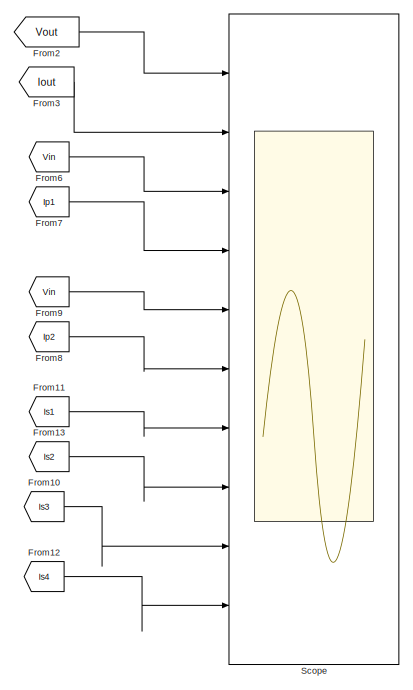
[diagram: root canvas - part 1/4, middle right region]
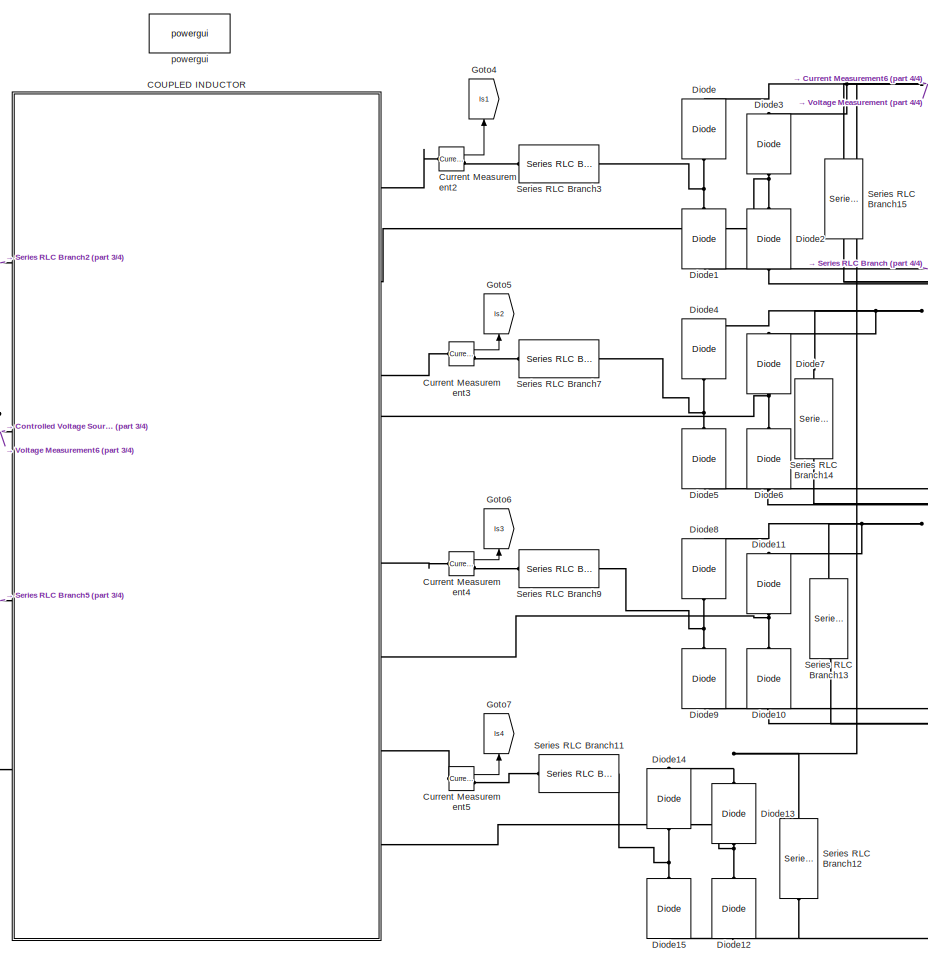
[diagram: root canvas - part 2/4, center side, full height]
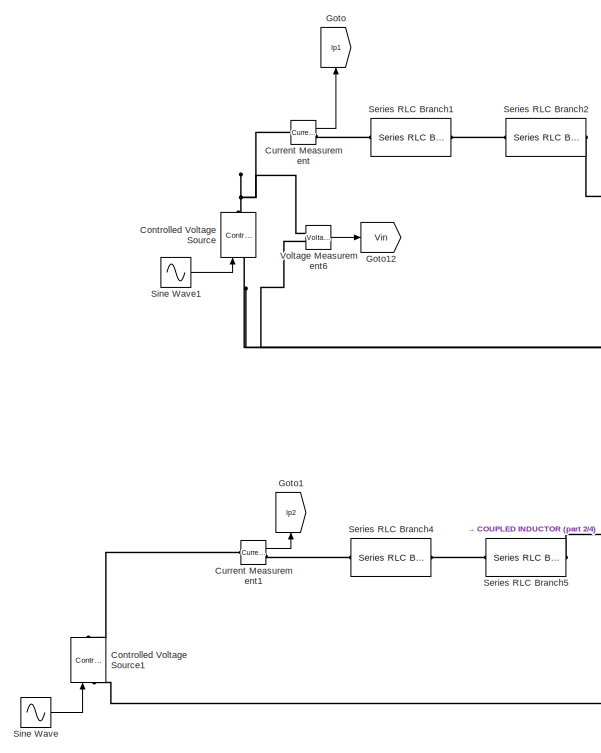
[diagram: root canvas - part 3/4, middle left region]
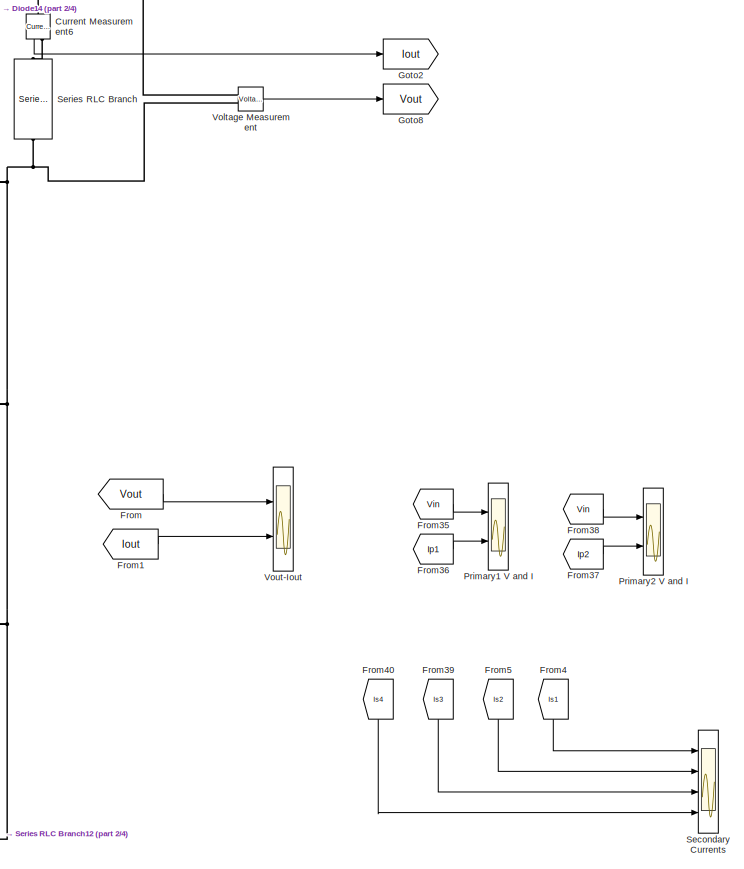
[diagram: root canvas - part 4/4, right side, full height]
MODEL slx_23c119fd1f82
KIND model
CONFIG AbsTol = auto
CONFIG EnableMultiTasking = off
CONFIG FixedStep = auto
CONFIG MaxStep = 1e-5
CONFIG MinStep = auto
CONFIG RelTol = 1e-3
CONFIG SampleTimeConstraint = Unconstrained
CONFIG Solver = VariableStepAuto
CONFIG SolverName = VariableStepAuto
CONFIG StartTime = 0.0
CONFIG StopTime = 0.01
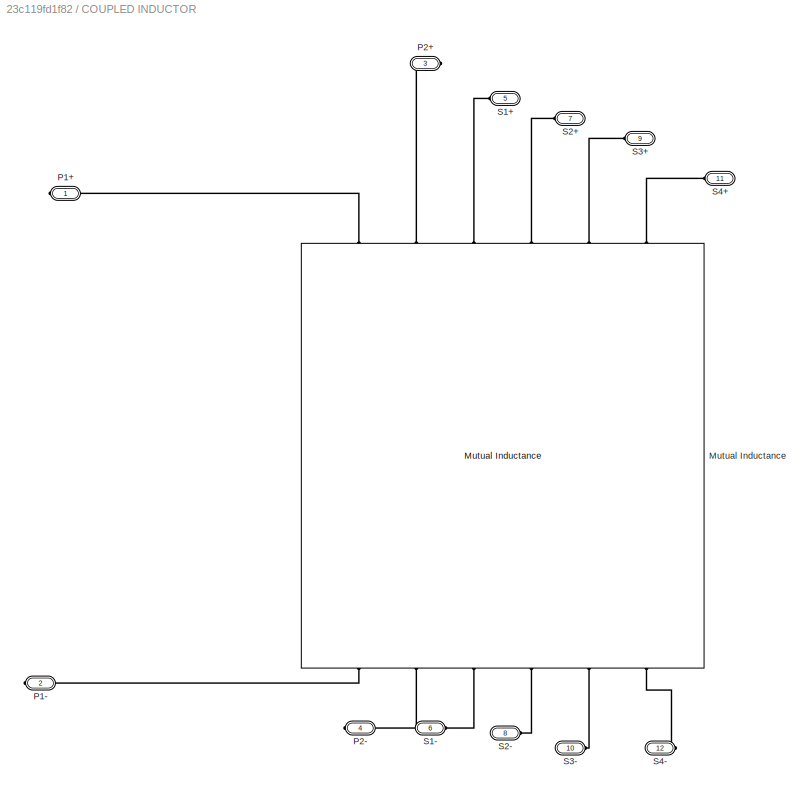
BLOCK [SubSystem] COUPLED INDUCTOR
  Ports = [0, 0, 0, 0, 0, 8, 4]
  RequestExecContextInheritance = off
BLOCK [Reference] COUPLED INDUCTOR/Mutual Inductance  REF=powerlib/Elements/Mutual Inductance
  AttributesFormatString = \n
  Ports = [0, 0, 0, 0, 0, 6, 6]
  SourceBlock = powerlib/Elements/Mutual Inductance
  SourceProductBaseCode = PS
  SourceProductName = Simscape Power Systems
  SourceType = Mutual Inductance
BLOCK [PMIOPort] COUPLED INDUCTOR/P1+
  Side = Right
BLOCK [PMIOPort] COUPLED INDUCTOR/P1-
  Port = 2
  Side = Right
BLOCK [PMIOPort] COUPLED INDUCTOR/P2+
  Port = 3
  Side = Right
BLOCK [PMIOPort] COUPLED INDUCTOR/P2-
  Port = 4
  Side = Right
BLOCK [PMIOPort] COUPLED INDUCTOR/S1+
  Port = 5
  Side = Left
BLOCK [PMIOPort] COUPLED INDUCTOR/S1-
  Port = 6
  Side = Left
BLOCK [PMIOPort] COUPLED INDUCTOR/S2+
  Port = 7
  Side = Left
BLOCK [PMIOPort] COUPLED INDUCTOR/S2-
  Port = 8
  Side = Left
BLOCK [PMIOPort] COUPLED INDUCTOR/S3+
  Port = 9
  Side = Left
BLOCK [PMIOPort] COUPLED INDUCTOR/S3-
  Port = 10
  Side = Left
BLOCK [PMIOPort] COUPLED INDUCTOR/S4+
  Port = 11
  Side = Left
BLOCK [PMIOPort] COUPLED INDUCTOR/S4-
  Port = 12
  Side = Left
BLOCK [Reference] Controlled Voltage Source  REF=powerlib/Electrical
Sources/Controlled Voltage Source
  Ports = [1, 0, 0, 0, 0, 1, 1]
  SourceBlock = powerlib/Electrical\nSources/Controlled Voltage Source
  SourceProductBaseCode = PS
  SourceProductName = Simscape Power Systems
  SourceType = Controlled Voltage Source
BLOCK [Reference] Controlled Voltage Source1  REF=powerlib/Electrical
Sources/Controlled Voltage Source
  Ports = [1, 0, 0, 0, 0, 1, 1]
  SourceBlock = powerlib/Electrical\nSources/Controlled Voltage Source
  SourceProductBaseCode = PS
  SourceProductName = Simscape Power Systems
  SourceType = Controlled Voltage Source
BLOCK [Reference] Current Measurement  REF=powerlib/Measurements/Current Measurement
  Ports = [0, 1, 0, 0, 0, 1, 1]
  SourceBlock = powerlib/Measurements/Current Measurement
  SourceProductBaseCode = PS
  SourceProductName = Simscape Power Systems
  SourceType = Current Measurement
  UserDataPersistent = on
BLOCK [Reference] Current Measurement1  REF=powerlib/Measurements/Current Measurement
  Ports = [0, 1, 0, 0, 0, 1, 1]
  SourceBlock = powerlib/Measurements/Current Measurement
  SourceProductBaseCode = PS
  SourceProductName = Simscape Power Systems
  SourceType = Current Measurement
  UserDataPersistent = on
BLOCK [Reference] Current Measurement2  REF=powerlib/Measurements/Current Measurement
  Ports = [0, 1, 0, 0, 0, 1, 1]
  SourceBlock = powerlib/Measurements/Current Measurement
  SourceProductBaseCode = PS
  SourceProductName = Simscape Power Systems
  SourceType = Current Measurement
  UserDataPersistent = on
BLOCK [Reference] Current Measurement3  REF=powerlib/Measurements/Current Measurement
  Ports = [0, 1, 0, 0, 0, 1, 1]
  SourceBlock = powerlib/Measurements/Current Measurement
  SourceProductBaseCode = PS
  SourceProductName = Simscape Power Systems
  SourceType = Current Measurement
  UserDataPersistent = on
BLOCK [Reference] Current Measurement4  REF=powerlib/Measurements/Current Measurement
  Ports = [0, 1, 0, 0, 0, 1, 1]
  SourceBlock = powerlib/Measurements/Current Measurement
  SourceProductBaseCode = PS
  SourceProductName = Simscape Power Systems
  SourceType = Current Measurement
  UserDataPersistent = on
BLOCK [Reference] Current Measurement5  REF=powerlib/Measurements/Current Measurement
  Ports = [0, 1, 0, 0, 0, 1, 1]
  SourceBlock = powerlib/Measurements/Current Measurement
  SourceProductBaseCode = PS
  SourceProductName = Simscape Power Systems
  SourceType = Current Measurement
  UserDataPersistent = on
BLOCK [Reference] Current Measurement6  REF=powerlib/Measurements/Current Measurement
  Ports = [0, 1, 0, 0, 0, 1, 1]
  SourceBlock = powerlib/Measurements/Current Measurement
  SourceProductBaseCode = PS
  SourceProductName = Simscape Power Systems
  SourceType = Current Measurement
  UserDataPersistent = on
BLOCK [Reference] Diode  REF=powerlib/Power
Electronics/Diode
  Ports = [0, 0, 0, 0, 0, 1, 1]
  SourceBlock = powerlib/Power\nElectronics/Diode
  SourceProductBaseCode = PS
  SourceProductName = Simscape Power Systems
  SourceType = Diode
BLOCK [Reference] Diode1  REF=powerlib/Power
Electronics/Diode
  Ports = [0, 0, 0, 0, 0, 1, 1]
  SourceBlock = powerlib/Power\nElectronics/Diode
  SourceProductBaseCode = PS
  SourceProductName = Simscape Power Systems
  SourceType = Diode
BLOCK [Reference] Diode10  REF=powerlib/Power
Electronics/Diode
  Ports = [0, 0, 0, 0, 0, 1, 1]
  SourceBlock = powerlib/Power\nElectronics/Diode
  SourceProductBaseCode = PS
  SourceProductName = Simscape Power Systems
  SourceType = Diode
BLOCK [Reference] Diode11  REF=powerlib/Power
Electronics/Diode
  Ports = [0, 0, 0, 0, 0, 1, 1]
  SourceBlock = powerlib/Power\nElectronics/Diode
  SourceProductBaseCode = PS
  SourceProductName = Simscape Power Systems
  SourceType = Diode
BLOCK [Reference] Diode12  REF=powerlib/Power
Electronics/Diode
  Ports = [0, 0, 0, 0, 0, 1, 1]
  SourceBlock = powerlib/Power\nElectronics/Diode
  SourceProductBaseCode = PS
  SourceProductName = Simscape Power Systems
  SourceType = Diode
BLOCK [Reference] Diode13  REF=powerlib/Power
Electronics/Diode
  Ports = [0, 0, 0, 0, 0, 1, 1]
  SourceBlock = powerlib/Power\nElectronics/Diode
  SourceProductBaseCode = PS
  SourceProductName = Simscape Power Systems
  SourceType = Diode
BLOCK [Reference] Diode14  REF=powerlib/Power
Electronics/Diode
  Ports = [0, 0, 0, 0, 0, 1, 1]
  SourceBlock = powerlib/Power\nElectronics/Diode
  SourceProductBaseCode = PS
  SourceProductName = Simscape Power Systems
  SourceType = Diode
BLOCK [Reference] Diode15  REF=powerlib/Power
Electronics/Diode
  Ports = [0, 0, 0, 0, 0, 1, 1]
  SourceBlock = powerlib/Power\nElectronics/Diode
  SourceProductBaseCode = PS
  SourceProductName = Simscape Power Systems
  SourceType = Diode
BLOCK [Reference] Diode2  REF=powerlib/Power
Electronics/Diode
  Ports = [0, 0, 0, 0, 0, 1, 1]
  SourceBlock = powerlib/Power\nElectronics/Diode
  SourceProductBaseCode = PS
  SourceProductName = Simscape Power Systems
  SourceType = Diode
BLOCK [Reference] Diode3  REF=powerlib/Power
Electronics/Diode
  Ports = [0, 0, 0, 0, 0, 1, 1]
  SourceBlock = powerlib/Power\nElectronics/Diode
  SourceProductBaseCode = PS
  SourceProductName = Simscape Power Systems
  SourceType = Diode
BLOCK [Reference] Diode4  REF=powerlib/Power
Electronics/Diode
  Ports = [0, 0, 0, 0, 0, 1, 1]
  SourceBlock = powerlib/Power\nElectronics/Diode
  SourceProductBaseCode = PS
  SourceProductName = Simscape Power Systems
  SourceType = Diode
BLOCK [Reference] Diode5  REF=powerlib/Power
Electronics/Diode
  Ports = [0, 0, 0, 0, 0, 1, 1]
  SourceBlock = powerlib/Power\nElectronics/Diode
  SourceProductBaseCode = PS
  SourceProductName = Simscape Power Systems
  SourceType = Diode
BLOCK [Reference] Diode6  REF=powerlib/Power
Electronics/Diode
  Ports = [0, 0, 0, 0, 0, 1, 1]
  SourceBlock = powerlib/Power\nElectronics/Diode
  SourceProductBaseCode = PS
  SourceProductName = Simscape Power Systems
  SourceType = Diode
BLOCK [Reference] Diode7  REF=powerlib/Power
Electronics/Diode
  Ports = [0, 0, 0, 0, 0, 1, 1]
  SourceBlock = powerlib/Power\nElectronics/Diode
  SourceProductBaseCode = PS
  SourceProductName = Simscape Power Systems
  SourceType = Diode
BLOCK [Reference] Diode8  REF=powerlib/Power
Electronics/Diode
  Ports = [0, 0, 0, 0, 0, 1, 1]
  SourceBlock = powerlib/Power\nElectronics/Diode
  SourceProductBaseCode = PS
  SourceProductName = Simscape Power Systems
  SourceType = Diode
BLOCK [Reference] Diode9  REF=powerlib/Power
Electronics/Diode
  Ports = [0, 0, 0, 0, 0, 1, 1]
  SourceBlock = powerlib/Power\nElectronics/Diode
  SourceProductBaseCode = PS
  SourceProductName = Simscape Power Systems
  SourceType = Diode
BLOCK [From] From
  GotoTag = Vout
BLOCK [From] From1
  GotoTag = Iout
BLOCK [From] From10
  GotoTag = Is3
BLOCK [From] From11
  GotoTag = Is1
BLOCK [From] From12
  GotoTag = Is4
BLOCK [From] From13
  GotoTag = Is2
BLOCK [From] From2
  GotoTag = Vout
BLOCK [From] From3
  GotoTag = Iout
BLOCK [From] From35
  GotoTag = Vin
BLOCK [From] From36
  GotoTag = Ip1
BLOCK [From] From37
  GotoTag = Ip2
BLOCK [From] From38
  GotoTag = Vin
BLOCK [From] From39
  GotoTag = Is3
BLOCK [From] From4
  GotoTag = Is1
BLOCK [From] From40
  GotoTag = Is4
BLOCK [From] From5
  GotoTag = Is2
BLOCK [From] From6
  GotoTag = Vin
BLOCK [From] From7
  GotoTag = Ip1
BLOCK [From] From8
  GotoTag = Ip2
BLOCK [From] From9
  GotoTag = Vin
BLOCK [Goto] Goto
  GotoTag = Ip1
BLOCK [Goto] Goto1
  GotoTag = Ip2
BLOCK [Goto] Goto12
  GotoTag = Vin
BLOCK [Goto] Goto2
  GotoTag = Iout
BLOCK [Goto] Goto4
  GotoTag = Is1
BLOCK [Goto] Goto5
  GotoTag = Is2
BLOCK [Goto] Goto6
  GotoTag = Is3
BLOCK [Goto] Goto7
  GotoTag = Is4
BLOCK [Goto] Goto8
  GotoTag = Vout
BLOCK [Scope] Primary1 V and I
  Floating = off
  NumInputPorts = 2
  Ports = [2]
  ScopeSpecificationString = Simulink.scopes.TimeScopeBlockCfg('CurrentConfiguration', extmgr.ConfigurationSet(extmgr.Configuration('Core','General UI',true,'FigureColor',[1 1 1]),extmgr.Configuration('Core','Source UI',true),extmgr.Configuration('Sources','WiredSimulink',true,'DataLoggingVariableName','ScopeData2'),extmgr.Configuration('Visuals','Time Domain',true,'SerializedDisplays',{struct('MinYLimReal','-158.74596','MaxY...<+1917ch>
BLOCK [Scope] Primary2 V and I
  Floating = off
  NumInputPorts = 2
  Ports = [2]
  ScopeSpecificationString = Simulink.scopes.TimeScopeBlockCfg('CurrentConfiguration', extmgr.ConfigurationSet(extmgr.Configuration('Core','General UI',true,'FigureColor',[1 1 1]),extmgr.Configuration('Core','Source UI',true),extmgr.Configuration('Sources','WiredSimulink',true,'DataLoggingVariableName','ScopeData3'),extmgr.Configuration('Visuals','Time Domain',true,'SerializedDisplays',{struct('MinYLimReal','-514.25571','MaxY...<+1945ch>
BLOCK [Scope] Scope
  Floating = off
  NumInputPorts = 10
  Ports = [10]
  ScopeSpecificationString = Simulink.scopes.TimeScopeBlockCfg('CurrentConfiguration', extmgr.ConfigurationSet(extmgr.Configuration('Core','General UI',true),extmgr.Configuration('Core','Source UI',true),extmgr.Configuration('Sources','WiredSimulink',true,'DataLoggingVariableName','AllData','DataLogging',true),extmgr.Configuration('Visuals','Time Domain',true,'SerializedDisplays',{struct('MinYLimReal','-158.74921','MaxYLimRea...<+1613ch>
BLOCK [Scope] Secondary Currents
  Floating = off
  NumInputPorts = 4
  Ports = [4]
  ScopeSpecificationString = Simulink.scopes.TimeScopeBlockCfg('CurrentConfiguration', extmgr.ConfigurationSet(extmgr.Configuration('Core','General UI',true,'FigureColor',[1 1 1]),extmgr.Configuration('Core','Source UI',true),extmgr.Configuration('Sources','WiredSimulink',true,'DataLoggingVariableName','ScopeData1'),extmgr.Configuration('Visuals','Time Domain',true,'SerializedDisplays',{struct('MinYLimReal','-2.42951','MaxYLi...<+1954ch>
BLOCK [Reference] Series RLC Branch  REF=powerlib/Elements/Series RLC Branch
  Ports = [0, 0, 0, 0, 0, 1, 1]
  SourceBlock = powerlib/Elements/Series RLC Branch
  SourceProductBaseCode = PS
  SourceProductName = Simscape Power Systems
  SourceType = Series RLC Branch
BLOCK [Reference] Series RLC Branch1  REF=powerlib/Elements/Series RLC Branch
  Ports = [0, 0, 0, 0, 0, 1, 1]
  SourceBlock = powerlib/Elements/Series RLC Branch
  SourceProductBaseCode = PS
  SourceProductName = Simscape Power Systems
  SourceType = Series RLC Branch
BLOCK [Reference] Series RLC Branch11  REF=powerlib/Elements/Series RLC Branch
  Ports = [0, 0, 0, 0, 0, 1, 1]
  SourceBlock = powerlib/Elements/Series RLC Branch
  SourceProductBaseCode = PS
  SourceProductName = Simscape Power Systems
  SourceType = Series RLC Branch
BLOCK [Reference] Series RLC Branch12  REF=powerlib/Elements/Series RLC Branch
  Ports = [0, 0, 0, 0, 0, 1, 1]
  SourceBlock = powerlib/Elements/Series RLC Branch
  SourceProductBaseCode = PS
  SourceProductName = Simscape Power Systems
  SourceType = Series RLC Branch
BLOCK [Reference] Series RLC Branch13  REF=powerlib/Elements/Series RLC Branch
  Ports = [0, 0, 0, 0, 0, 1, 1]
  SourceBlock = powerlib/Elements/Series RLC Branch
  SourceProductBaseCode = PS
  SourceProductName = Simscape Power Systems
  SourceType = Series RLC Branch
BLOCK [Reference] Series RLC Branch14  REF=powerlib/Elements/Series RLC Branch
  Ports = [0, 0, 0, 0, 0, 1, 1]
  SourceBlock = powerlib/Elements/Series RLC Branch
  SourceProductBaseCode = PS
  SourceProductName = Simscape Power Systems
  SourceType = Series RLC Branch
BLOCK [Reference] Series RLC Branch15  REF=powerlib/Elements/Series RLC Branch
  Ports = [0, 0, 0, 0, 0, 1, 1]
  SourceBlock = powerlib/Elements/Series RLC Branch
  SourceProductBaseCode = PS
  SourceProductName = Simscape Power Systems
  SourceType = Series RLC Branch
BLOCK [Reference] Series RLC Branch2  REF=powerlib/Elements/Series RLC Branch
  Ports = [0, 0, 0, 0, 0, 1, 1]
  SourceBlock = powerlib/Elements/Series RLC Branch
  SourceProductBaseCode = PS
  SourceProductName = Simscape Power Systems
  SourceType = Series RLC Branch
BLOCK [Reference] Series RLC Branch3  REF=powerlib/Elements/Series RLC Branch
  Ports = [0, 0, 0, 0, 0, 1, 1]
  SourceBlock = powerlib/Elements/Series RLC Branch
  SourceProductBaseCode = PS
  SourceProductName = Simscape Power Systems
  SourceType = Series RLC Branch
BLOCK [Reference] Series RLC Branch4  REF=powerlib/Elements/Series RLC Branch
  Ports = [0, 0, 0, 0, 0, 1, 1]
  SourceBlock = powerlib/Elements/Series RLC Branch
  SourceProductBaseCode = PS
  SourceProductName = Simscape Power Systems
  SourceType = Series RLC Branch
BLOCK [Reference] Series RLC Branch5  REF=powerlib/Elements/Series RLC Branch
  Ports = [0, 0, 0, 0, 0, 1, 1]
  SourceBlock = powerlib/Elements/Series RLC Branch
  SourceProductBaseCode = PS
  SourceProductName = Simscape Power Systems
  SourceType = Series RLC Branch
BLOCK [Reference] Series RLC Branch7  REF=powerlib/Elements/Series RLC Branch
  Ports = [0, 0, 0, 0, 0, 1, 1]
  SourceBlock = powerlib/Elements/Series RLC Branch
  SourceProductBaseCode = PS
  SourceProductName = Simscape Power Systems
  SourceType = Series RLC Branch
BLOCK [Reference] Series RLC Branch9  REF=powerlib/Elements/Series RLC Branch
  Ports = [0, 0, 0, 0, 0, 1, 1]
  SourceBlock = powerlib/Elements/Series RLC Branch
  SourceProductBaseCode = PS
  SourceProductName = Simscape Power Systems
  SourceType = Series RLC Branch
BLOCK [Sin] Sine Wave
  Amplitude = Vin_peak
  Frequency = fop*1000*2*pi
  Ports = [0, 1]
  SampleTime = 0
BLOCK [Sin] Sine Wave1
  Amplitude = Vin_peak
  Frequency = fop*1000*2*pi
  Ports = [0, 1]
  SampleTime = 0
BLOCK [Reference] Voltage Measurement  REF=powerlib/Measurements/Voltage Measurement
  Ports = [0, 1, 0, 0, 0, 2]
  SourceBlock = powerlib/Measurements/Voltage Measurement
  SourceProductBaseCode = PS
  SourceProductName = Simscape Power Systems
  SourceType = Voltage Measurement
  UserDataPersistent = on
BLOCK [Reference] Voltage Measurement6  REF=powerlib/Measurements/Voltage Measurement
  Ports = [0, 1, 0, 0, 0, 2]
  SourceBlock = powerlib/Measurements/Voltage Measurement
  SourceProductBaseCode = PS
  SourceProductName = Simscape Power Systems
  SourceType = Voltage Measurement
  UserDataPersistent = on
BLOCK [Scope] Vout-Iout
  Floating = off
  NumInputPorts = 2
  Ports = [2]
  ScopeSpecificationString = Simulink.scopes.TimeScopeBlockCfg('CurrentConfiguration', extmgr.ConfigurationSet(extmgr.Configuration('Core','General UI',true,'FigureColor',[1 1 1]),extmgr.Configuration('Core','Source UI',true),extmgr.Configuration('Sources','WiredSimulink',true,'DataLoggingVariableName','Output'),extmgr.Configuration('Visuals','Time Domain',true,'SerializedDisplays',{struct('MinYLimReal','-11.7804','MaxYLimRea...<+1908ch>
BLOCK [Reference] powergui  REF=powerlib/powergui
  Ports = []
  Priority = 1
  SourceBlock = powerlib/powergui
  SourceProductBaseCode = PS
  SourceProductName = Simscape Power Systems
  SourceType = PSB option menu block
LINE Current Measurement1:1 -> Goto1:1
LINE Current Measurement2:1 -> Goto4:1
LINE Current Measurement3:1 -> Goto5:1
LINE Current Measurement4:1 -> Goto6:1
LINE Current Measurement5:1 -> Goto7:1
LINE Current Measurement6:1 -> Goto2:1
LINE Current Measurement:1 -> Goto:1
LINE From10:1 -> Scope:9
LINE From11:1 -> Scope:7
LINE From12:1 -> Scope:10
LINE From13:1 -> Scope:8
LINE From1:1 -> Vout-Iout:2
LINE From2:1 -> Scope:1
LINE From35:1 -> Primary1 V and I:1
LINE From36:1 -> Primary1 V and I:2
LINE From37:1 -> Primary2 V and I:2
LINE From38:1 -> Primary2 V and I:1
LINE From39:1 -> Secondary Currents:3
LINE From3:1 -> Scope:2
LINE From40:1 -> Secondary Currents:4
LINE From4:1 -> Secondary Currents:1
LINE From5:1 -> Secondary Currents:2
LINE From6:1 -> Scope:3
LINE From7:1 -> Scope:4
LINE From8:1 -> Scope:6
LINE From9:1 -> Scope:5
LINE From:1 -> Vout-Iout:1
LINE Sine Wave1:1 -> Controlled Voltage Source:1
LINE Sine Wave:1 -> Controlled Voltage Source1:1
LINE Voltage Measurement6:1 -> Goto12:1
LINE Voltage Measurement:1 -> Goto8:1
PLINE COUPLED INDUCTOR/Mutual Inductance:LConn1 -- COUPLED INDUCTOR/P1-:RConn1
PLINE COUPLED INDUCTOR/Mutual Inductance:LConn2 -- COUPLED INDUCTOR/P2-:RConn1
PLINE COUPLED INDUCTOR/Mutual Inductance:LConn3 -- COUPLED INDUCTOR/S1-:RConn1
PLINE COUPLED INDUCTOR/Mutual Inductance:LConn4 -- COUPLED INDUCTOR/S2-:RConn1
PLINE COUPLED INDUCTOR/Mutual Inductance:LConn5 -- COUPLED INDUCTOR/S3-:RConn1
PLINE COUPLED INDUCTOR/Mutual Inductance:LConn6 -- COUPLED INDUCTOR/S4-:RConn1
PLINE COUPLED INDUCTOR/Mutual Inductance:RConn1 -- COUPLED INDUCTOR/P1+:RConn1
PLINE COUPLED INDUCTOR/Mutual Inductance:RConn2 -- COUPLED INDUCTOR/P2+:RConn1
PLINE COUPLED INDUCTOR/Mutual Inductance:RConn3 -- COUPLED INDUCTOR/S1+:RConn1
PLINE COUPLED INDUCTOR/Mutual Inductance:RConn4 -- COUPLED INDUCTOR/S2+:RConn1
PLINE COUPLED INDUCTOR/Mutual Inductance:RConn5 -- COUPLED INDUCTOR/S3+:RConn1
PLINE COUPLED INDUCTOR/Mutual Inductance:RConn6 -- COUPLED INDUCTOR/S4+:RConn1
PLINE COUPLED INDUCTOR:LConn1 -- Current Measurement2:LConn1
PNET net1: COUPLED INDUCTOR:LConn2 -- Diode2:RConn1 -- Diode3:LConn1
PLINE COUPLED INDUCTOR:LConn3 -- Current Measurement3:LConn1
PNET net2: COUPLED INDUCTOR:LConn4 -- Diode6:RConn1 -- Diode7:LConn1
PLINE COUPLED INDUCTOR:LConn5 -- Current Measurement4:LConn1
PNET net3: COUPLED INDUCTOR:LConn6 -- Diode10:RConn1 -- Diode11:LConn1
PLINE COUPLED INDUCTOR:LConn7 -- Current Measurement5:LConn1
PNET net4: COUPLED INDUCTOR:LConn8 -- Diode12:RConn1 -- Diode13:LConn1
PLINE COUPLED INDUCTOR:RConn1 -- Series RLC Branch2:RConn1
PNET net5: COUPLED INDUCTOR:RConn2 -- Controlled Voltage Source:LConn1 -- Voltage Measurement6:LConn2
PLINE COUPLED INDUCTOR:RConn3 -- Series RLC Branch5:RConn1
PLINE COUPLED INDUCTOR:RConn4 -- Controlled Voltage Source1:LConn1
PLINE Controlled Voltage Source1:RConn1 -- Current Measurement1:LConn1
PNET net6: Controlled Voltage Source:RConn1 -- Current Measurement:LConn1 -- Voltage Measurement6:LConn1
PLINE Current Measurement1:RConn1 -- Series RLC Branch4:RConn1
PLINE Current Measurement2:RConn1 -- Series RLC Branch3:LConn1
PLINE Current Measurement3:RConn1 -- Series RLC Branch7:LConn1
PLINE Current Measurement4:RConn1 -- Series RLC Branch9:LConn1
PLINE Current Measurement5:RConn1 -- Series RLC Branch11:LConn1
PNET net7: Current Measurement6:LConn1 -- Diode11:RConn1 -- Diode13:RConn1 -- Diode14:RConn1 -- Diode3:RConn1 -- Diode4:RConn1 -- Diode7:RConn1 -- Diode8:RConn1 -- Diode:RConn1 -- Series RLC Branch12:LConn1 -- Series RLC Branch13:LConn1 -- Series RLC Branch14:LConn1 -- Series RLC Branch15:LConn1 -- Voltage Measurement:LConn1
PLINE Current Measurement6:RConn1 -- Series RLC Branch:LConn1
PLINE Current Measurement:RConn1 -- Series RLC Branch1:RConn1
PNET net8: Diode10:LConn1 -- Diode12:LConn1 -- Diode15:LConn1 -- Diode1:LConn1 -- Diode2:LConn1 -- Diode5:LConn1 -- Diode6:LConn1 -- Diode9:LConn1 -- Series RLC Branch12:RConn1 -- Series RLC Branch13:RConn1 -- Series RLC Branch14:RConn1 -- Series RLC Branch15:RConn1 -- Series RLC Branch:RConn1 -- Voltage Measurement:LConn2
PNET net9: Diode14:LConn1 -- Diode15:RConn1 -- Series RLC Branch11:RConn1
PNET net10: Diode1:RConn1 -- Diode:LConn1 -- Series RLC Branch3:RConn1
PNET net11: Diode4:LConn1 -- Diode5:RConn1 -- Series RLC Branch7:RConn1
PNET net12: Diode8:LConn1 -- Diode9:RConn1 -- Series RLC Branch9:RConn1
PLINE Series RLC Branch1:LConn1 -- Series RLC Branch2:LConn1
PLINE Series RLC Branch4:LConn1 -- Series RLC Branch5:LConn1
note: PNET lines group multi-terminal physical nets as a canonical sorted terminal list (undirected conserving connections); 2-terminal nets keep the pairwise PLINE form
